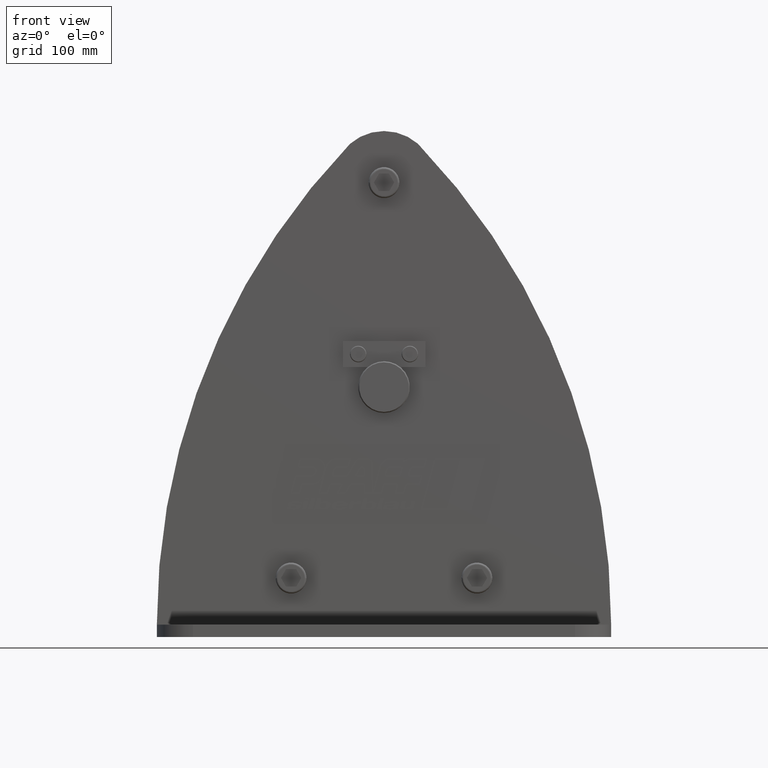
[diagram: clean part render]
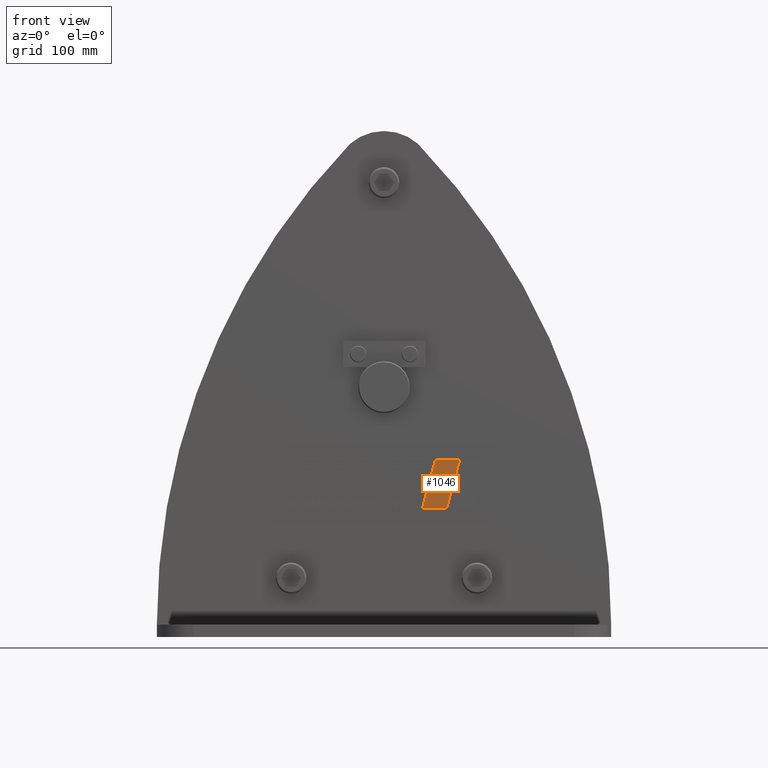
[diagram: same view with one face highlighted and labeled with its STEP entity id]
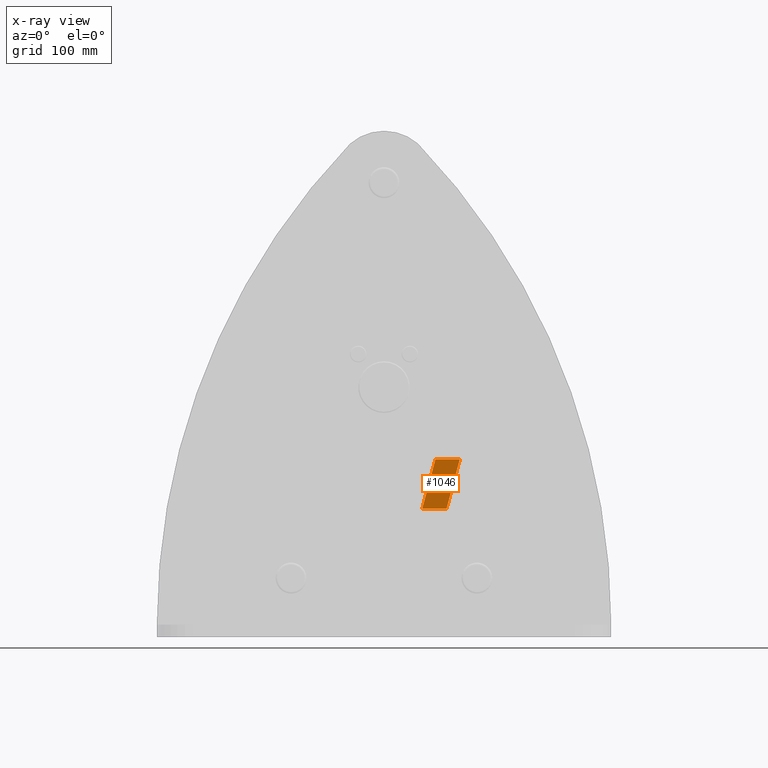
[diagram: x-ray of the same camera — body ghosted, the highlighted face saturated]
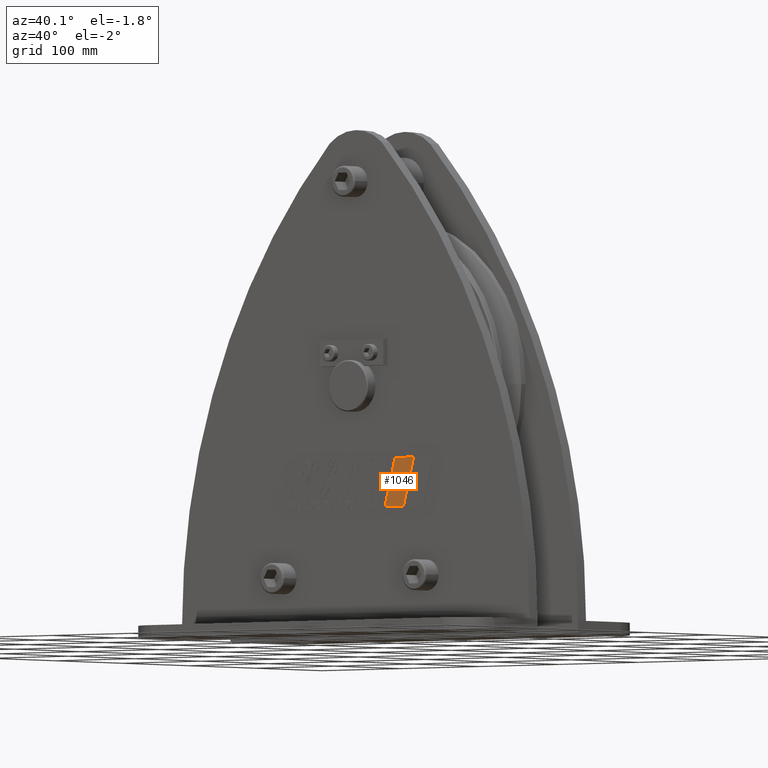
[diagram: same view with one face highlighted and labeled with its STEP entity id]
A machine part, front view. The second image highlights one B-rep face of the part: STEP entity #1046.
The next image is the same camera in x-ray: the body ghosted, the highlighted face saturated — about 0% of this face is hidden behind the body in this view.
A second angle (auxiliary view) of the same face is appended — the face is thin or edge-on in the first view.
In plain terms, the highlighted planar face has unit normal (0, -1, 0).
Its self-contained STEP definition (entity closure, byte-faithful):
#1046=ADVANCED_FACE('',(#2564),#2565,.T.);
#2564=FACE_OUTER_BOUND('',#4596,.T.);
#2565=PLANE('',#4597);
#4596=EDGE_LOOP('',(#7963,#7964,#7965,#7966));
#4597=AXIS2_PLACEMENT_3D('',#7967,#7968,#7969);
#7963=ORIENTED_EDGE('',*,*,#12645,.T.);
#7964=ORIENTED_EDGE('',*,*,#12657,.T.);
#7965=ORIENTED_EDGE('',*,*,#12653,.T.);
#7966=ORIENTED_EDGE('',*,*,#12649,.T.);
#7967=CARTESIAN_POINT('',(2.36144437337771E-012,-42.5,-51.555144316737));
#7968=DIRECTION('',(0.0,-1.0,0.0));
#7969=DIRECTION('',(1.0,0.0,0.0));
#12645=EDGE_CURVE('',#15420,#15418,#15421,.T.);
#12649=EDGE_CURVE('',#15426,#15420,#15427,.T.);
#12653=EDGE_CURVE('',#15432,#15426,#15433,.T.);
#12657=EDGE_CURVE('',#15418,#15432,#15437,.T.);
#15418=VERTEX_POINT('',#22323);
#15420=VERTEX_POINT('',#22326);
#15421=LINE('',#22327,#22328);
#15426=VERTEX_POINT('',#22335);
#15427=LINE('',#22336,#22337);
#15432=VERTEX_POINT('',#22344);
#15433=LINE('',#22345,#22346);
#15437=LINE('',#22352,#22353);
#22323=CARTESIAN_POINT('',(73.3429207187478,-42.5,-70.1629090736707));
#22326=CARTESIAN_POINT('',(60.5690250746847,-42.5,-117.835736));
#22327=CARTESIAN_POINT('',(73.2123692323797,-42.5,-70.650133847383));
#22328=VECTOR('',#27599,1.0);
#22335=CARTESIAN_POINT('',(37.0314213346578,-42.5,-117.835736));
#22336=CARTESIAN_POINT('',(30.2845125373435,-42.5,-117.835736));
#22337=VECTOR('',#27602,1.0);
#22344=CARTESIAN_POINT('',(49.8053169787208,-42.5,-70.1629090736705));
#22345=CARTESIAN_POINT('',(44.076177928935,-42.5,-91.5443468094843));
#22346=VECTOR('',#27605,1.0);
#22352=CARTESIAN_POINT('',(24.9026584893616,-42.5,-70.1629090736705));
#22353=VECTOR('',#27608,1.0);
#27599=DIRECTION('',(0.258819048283064,0.0,0.965925825436844));
#27602=DIRECTION('',(1.0,0.0,0.0));
#27605=DIRECTION('',(-0.258819048283062,-0.0,-0.965925825436845));
#27608=DIRECTION('',(-1.0,0.0,0.0));